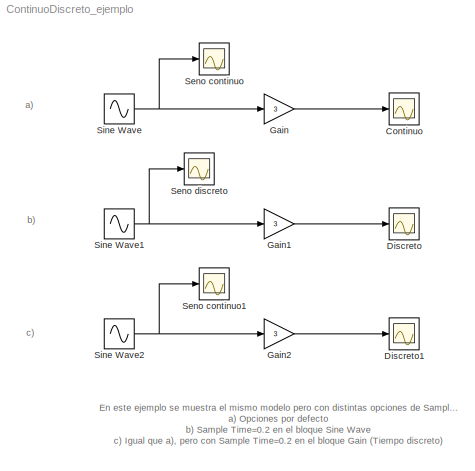
MODEL ContinuoDiscreto_ejemplo
KIND model
BLOCK [Scope] Continuo
  DataFormat = StructureWithTime
  Floating = off
  NumInputPorts = 1
  Ports = [1]
  SampleTime = 0
BLOCK [Scope] Discreto
  DataFormat = StructureWithTime
  Floating = off
  NumInputPorts = 1
  Ports = [1]
  SampleTime = 0
  SaveName = ScopeData1
BLOCK [Scope] Discreto1
  DataFormat = StructureWithTime
  Floating = off
  NumInputPorts = 1
  Ports = [1]
  SampleTime = 0
  SaveName = ScopeData4
BLOCK [Gain] Gain
  Gain = 3
  OutDataType = sfix(16)
  OutDataTypeMode = Inherit via internal rule
  OutDataTypeStr = Inherit: Inherit via internal rule
  OutScaling = 2^0
  ParamDataTypeStr = Inherit: Inherit via internal rule
  ParameterDataType = sfix(16)
  ParameterDataTypeMode = Inherit via internal rule
  ParameterScaling = 2^0
  SaturateOnIntegerOverflow = off
BLOCK [Gain] Gain1
  Gain = 3
  OutDataType = sfix(16)
  OutDataTypeMode = Inherit via internal rule
  OutDataTypeStr = Inherit: Inherit via internal rule
  OutScaling = 2^0
  ParamDataTypeStr = Inherit: Inherit via internal rule
  ParameterDataType = sfix(16)
  ParameterDataTypeMode = Inherit via internal rule
  ParameterScaling = 2^0
  SaturateOnIntegerOverflow = off
BLOCK [Gain] Gain2
  Gain = 3
  OutDataType = sfix(16)
  OutDataTypeMode = Inherit via internal rule
  OutDataTypeStr = Inherit: Inherit via internal rule
  OutScaling = 2^0
  ParamDataTypeStr = Inherit: Inherit via internal rule
  ParameterDataType = sfix(16)
  ParameterDataTypeMode = Inherit via internal rule
  ParameterScaling = 2^0
  SampleTime = 0.2
  SaturateOnIntegerOverflow = off
BLOCK [Scope] Seno continuo
  DataFormat = StructureWithTime
  Floating = off
  NumInputPorts = 1
  Ports = [1]
  SampleTime = 0
  SaveName = ScopeData2
  ZoomMode = xonly
BLOCK [Scope] Seno continuo1
  DataFormat = StructureWithTime
  Floating = off
  NumInputPorts = 1
  Ports = [1]
  SampleTime = 0
  SaveName = ScopeData5
  ZoomMode = xonly
BLOCK [Scope] Seno discreto
  DataFormat = StructureWithTime
  Floating = off
  NumInputPorts = 1
  Ports = [1]
  SampleTime = 0
  SaveName = ScopeData3
BLOCK [Sin] Sine Wave
  Ports = [0, 1]
  SampleTime = 0
BLOCK [Sin] Sine Wave1
  Ports = [0, 1]
  SampleTime = 0.2
BLOCK [Sin] Sine Wave2
  Ports = [0, 1]
  SampleTime = 0
ANNOTATION (root): En este ejemplo se muestra el mismo modelo pero con distintas opciones de Sample Time en sus bloques:\na) Opciones por defecto\nb) Sample Time=0.2 en el bloque Sine Wave\nc) Igual que a), pero con Sample Time=0.2 en el bloque Gain (Tiempo discreto)
ANNOTATION (root): a)
ANNOTATION (root): b)
ANNOTATION (root): c)
LINE Gain1:1 -> Discreto:1
LINE Gain2:1 -> Discreto1:1
LINE Gain:1 -> Continuo:1
NET Sine Wave1:1 -> Gain1:1, Seno discreto:1
NET Sine Wave2:1 -> Gain2:1, Seno continuo1:1
NET Sine Wave:1 -> Gain:1, Seno continuo:1
note: NET lines group one-source signal fan-out (src -> all destinations, sorted); 1:1 wires keep LINE
